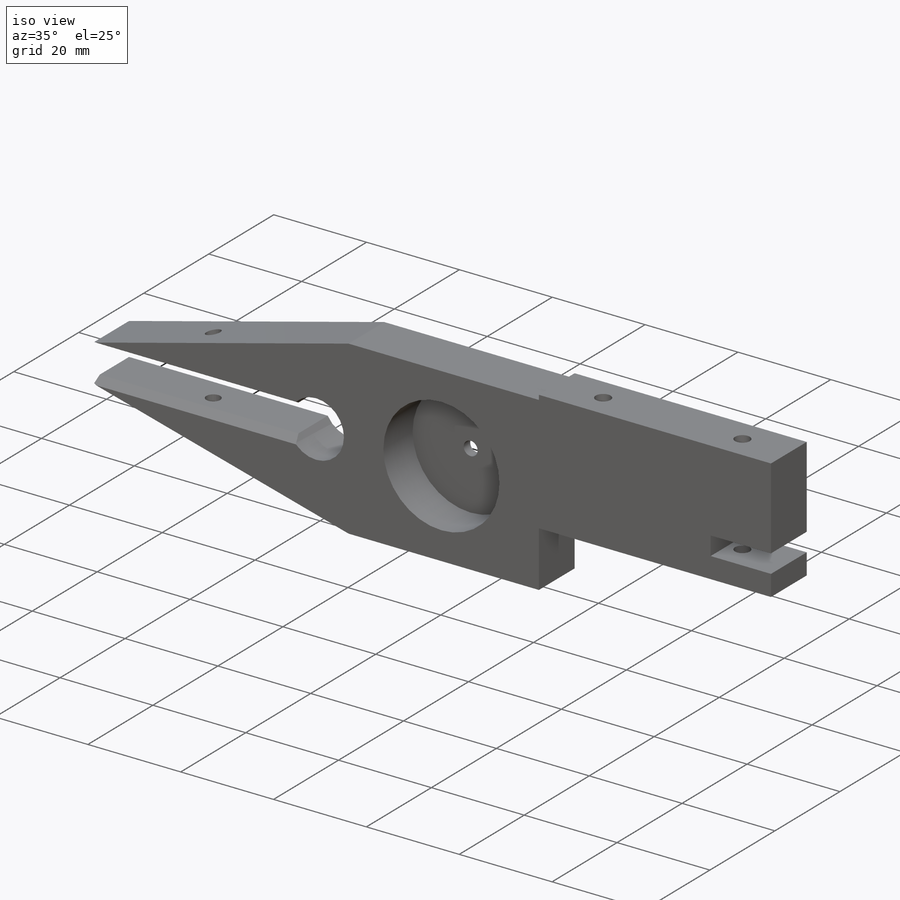
[diagram: iso view]
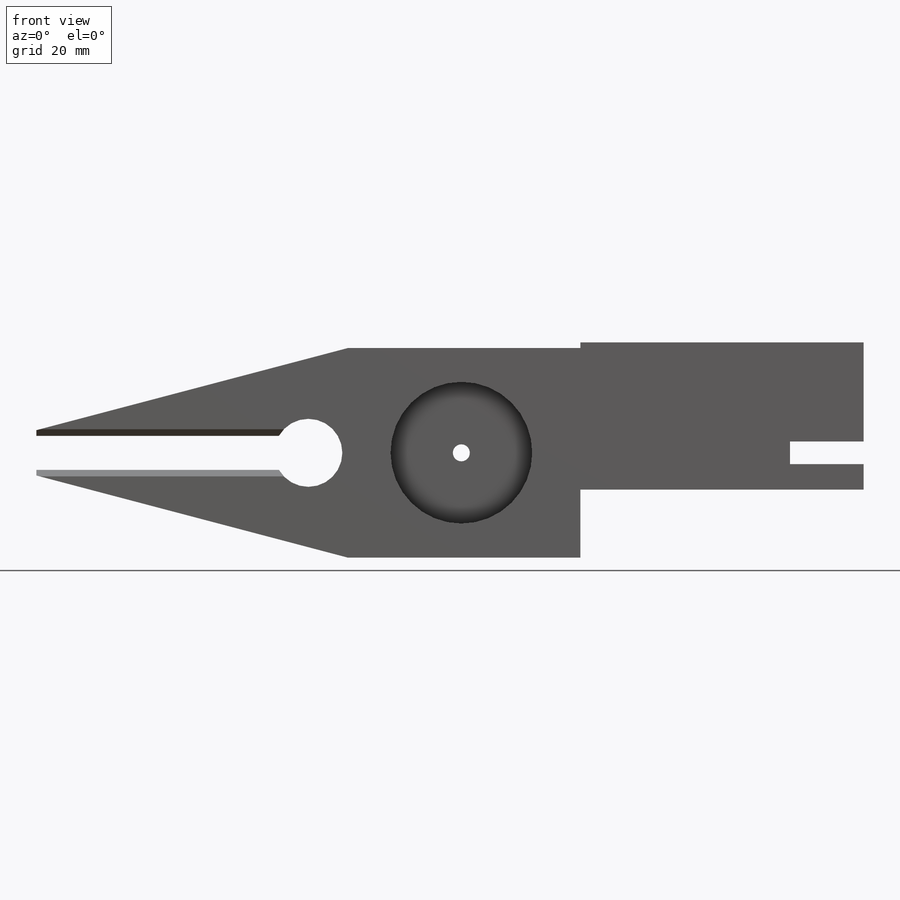
[diagram: front view]
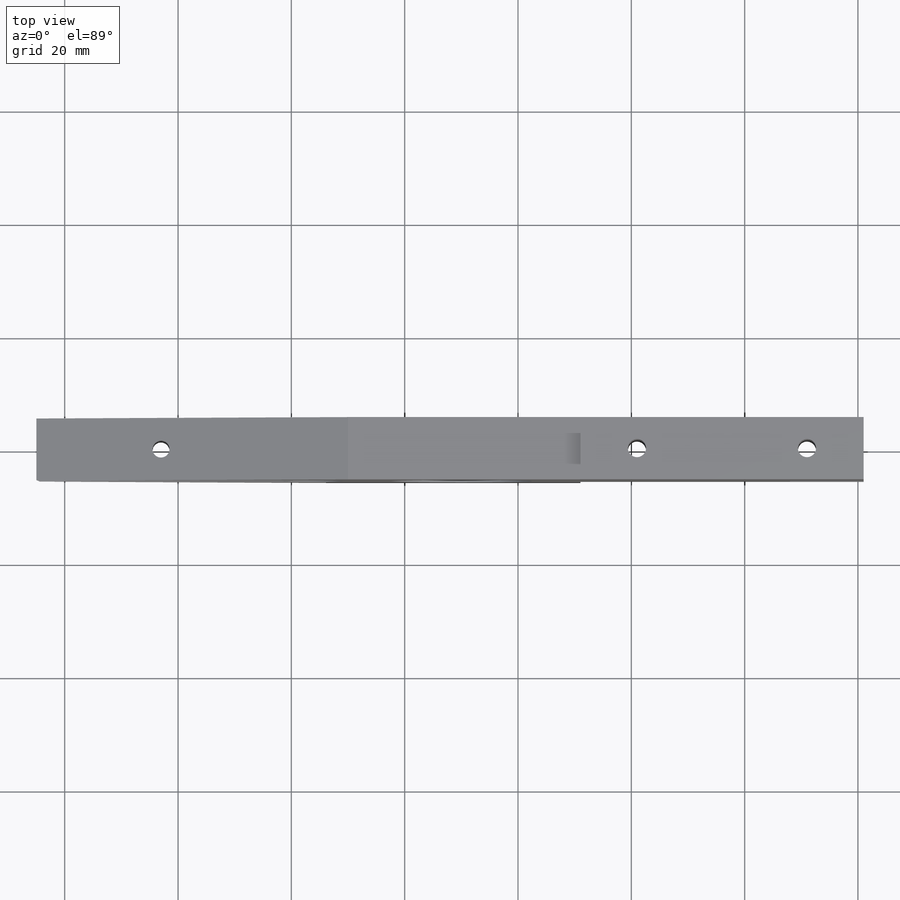
[diagram: top view]
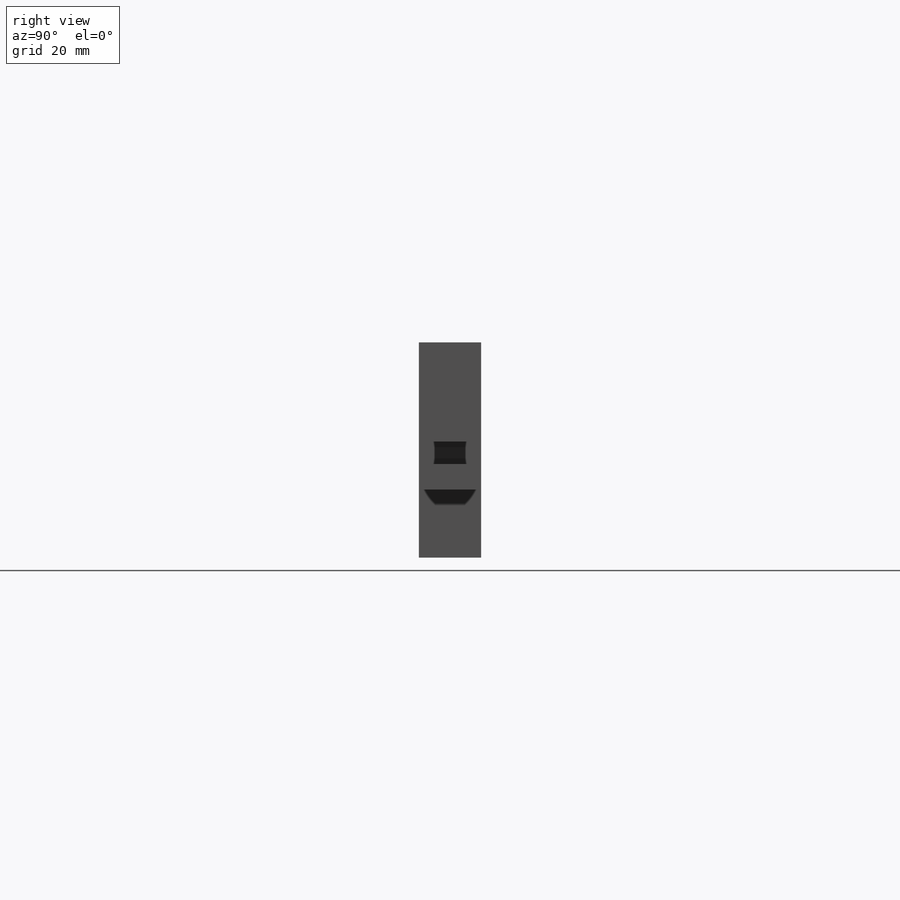
[diagram: right view]
SOLIDWORKS PART (.sldprt)
format: sldprt  version: not decoded by parser v0  size: 251,392 bytes
history: native  units: mm
features: sketch x3, material x1, extrude x1, cut_extrude x1, chamfer x1, cut_revolve x1 (+15 scaffold rows collapsed)
feature tree (23):
  scaffold x15  (default folders/planes/origin — collapsed)
  material  "Pine"
  sketch  "Sketch1"  dims[c1.D8=6.0mm c1.D1=50.0mm c1.D2=3.0mm c1.D3=26.0mm c1.D4=4.0mm c1.D5=13.0mm c1.D6=1.0mm c1.D7=6.0mm c1.D9=30.0mm c1.D10=43.0mm c1.D11=55.0mm c1.D12=37.0mm c2.D3=26.0mm c2.D13=2.0mm c2.D14=61.0mm c2.D15=11.0mm c2.D10=11.0mm c2.D2=1.0mm c3.D10=11.0mm c3.D13=37.0mm]
  extrude  "Extrude1"  Depth=11mm
  sketch  "Sketch2"  dims[D1=3.2mm D4=3.0mm D2=30.0mm D3=10.0mm D5=63.0mm]
  cut_extrude  "Cut-Extrude1"  [1 undecoded]
  chamfer  "Chamfer1"  Distance=2mm Angle=30deg
  sketch  "Sketch3"  dims[D1=2.0mm D2=3.0mm D3=25.0mm D4=10.0mm]
  cut_revolve  "Cut-Revolve1"  Angle=360deg
decode coverage: 6 of 7 modeling features carry decoded parameters
note: 1 parameter value undecoded
note: suppression state not decoded; provenance and decode notes live in map.json
